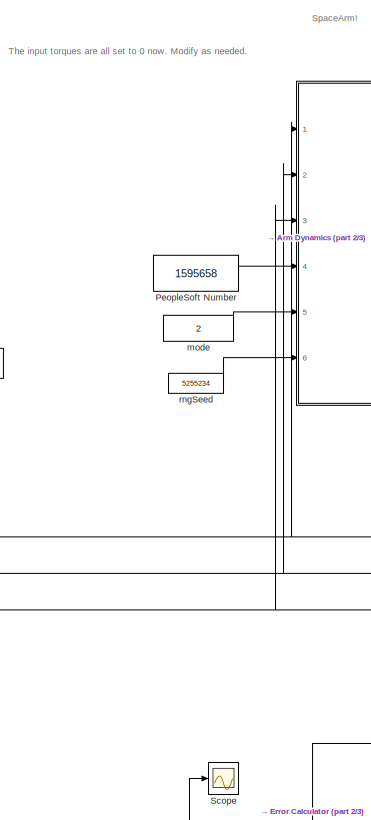
[diagram: root canvas - part 1/3, center side, full height]
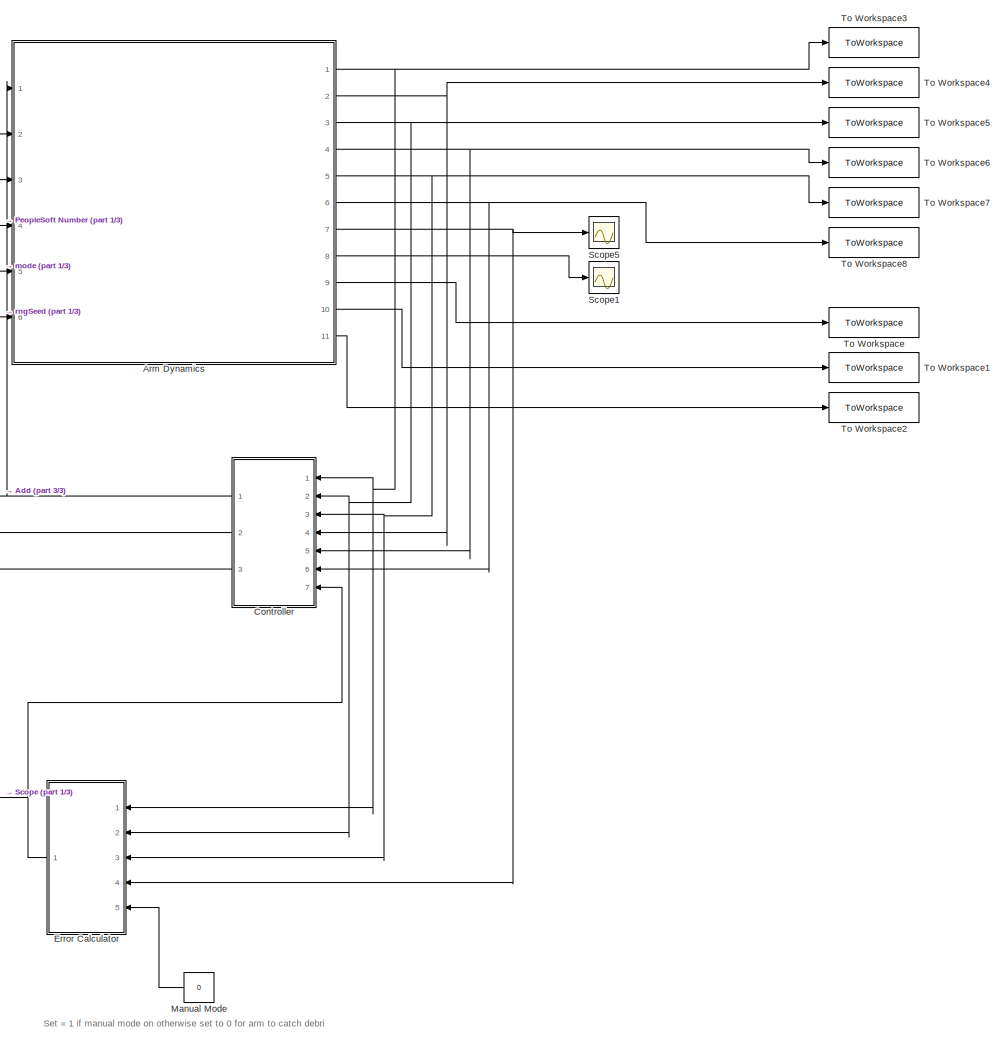
[diagram: root canvas - part 2/3, right side, full height]
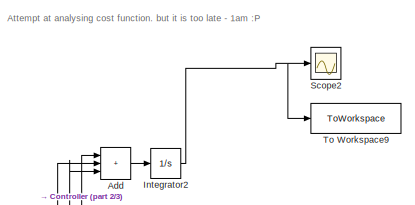
[diagram: root canvas - part 3/3, middle left region]
MODEL slx_ba3f19c8d5ce
KIND model
CONFIG AbsTol = auto
CONFIG EnableMultiTasking = off
CONFIG FixedStep = 0.01
CONFIG MaxStep = 0.01
CONFIG MinStep = auto
CONFIG RelTol = 1e-3
CONFIG SampleTimeConstraint = Unconstrained
CONFIG SolverName = ode4
CONFIG StartTime = 0.0
CONFIG StopTime = 5
BLOCK [Sum] Add
  IconShape = rectangular
  Inputs = +++
  Ports = [3, 1]
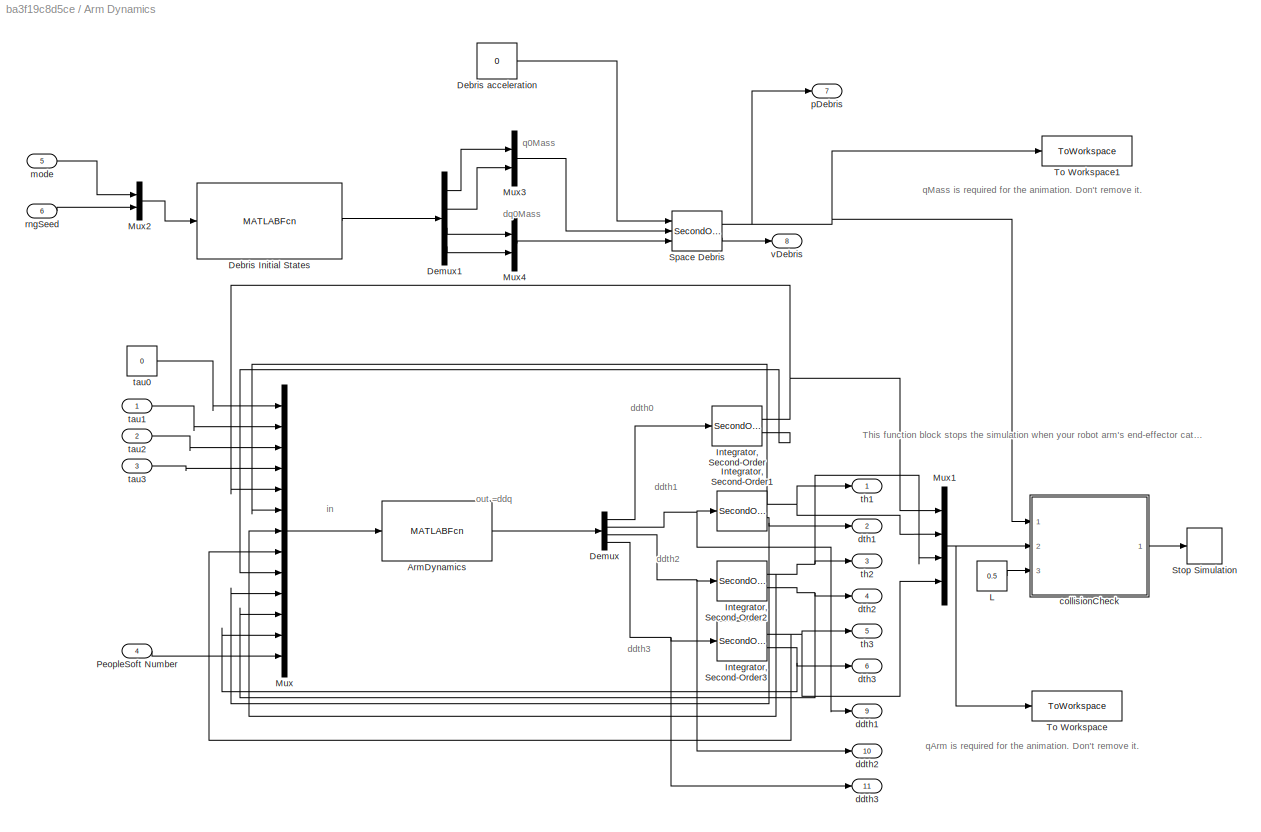
BLOCK [SubSystem] Arm Dynamics
  Ports = [6, 11]
  RequestExecContextInheritance = off
BLOCK [MATLABFcn] Arm Dynamics/ArmDynamics
  MATLABFcn = ArmDynamics
  OutputDimensions = 4
  Ports = [1, 1]
BLOCK [MATLABFcn] Arm Dynamics/Debris Initial States
  MATLABFcn = initdebrisstates
  OutputDimensions = 4
  Ports = [1, 1]
BLOCK [Constant] Arm Dynamics/Debris acceleration
  Value = 0
BLOCK [Demux] Arm Dynamics/Demux
  Ports = [1, 4]
BLOCK [Demux] Arm Dynamics/Demux1
  Ports = [1, 4]
BLOCK [SecondOrderIntegrator] Arm Dynamics/Integrator, Second-Order
  Ports = [1, 2]
BLOCK [SecondOrderIntegrator] Arm Dynamics/Integrator, Second-Order1
  ICX = -1*pi/2
  Ports = [1, 2]
BLOCK [SecondOrderIntegrator] Arm Dynamics/Integrator, Second-Order2
  Ports = [1, 2]
BLOCK [SecondOrderIntegrator] Arm Dynamics/Integrator, Second-Order3
  Ports = [1, 2]
BLOCK [Constant] Arm Dynamics/L
  Value = 0.5
BLOCK [Mux] Arm Dynamics/Mux
  DisplayOption = bar
  Inputs = 13
  Ports = [13, 1]
BLOCK [Mux] Arm Dynamics/Mux1
  DisplayOption = bar
  Ports = [4, 1]
BLOCK [Mux] Arm Dynamics/Mux2
  DisplayOption = bar
  Inputs = 2
  Ports = [2, 1]
BLOCK [Mux] Arm Dynamics/Mux3
  DisplayOption = bar
  Inputs = 2
  Ports = [2, 1]
BLOCK [Mux] Arm Dynamics/Mux4
  DisplayOption = bar
  Inputs = 2
  Ports = [2, 1]
BLOCK [Inport] Arm Dynamics/PeopleSoft Number
  Port = 4
BLOCK [SecondOrderIntegrator] Arm Dynamics/Space Debris
  ICDXDT = dq0Mass
  ICSourceDXDT = external
  ICSourceX = external
  ICX = q0Mass
  Ports = [3, 2]
BLOCK [Stop] Arm Dynamics/Stop Simulation
BLOCK [ToWorkspace] Arm Dynamics/To Workspace
  FixptAsFi = on
  MaxDataPoints = inf
  Ports = [1]
  SampleTime = 0.01
  SaveFormat = Structure With Time
  VariableName = qArm
BLOCK [ToWorkspace] Arm Dynamics/To Workspace1
  FixptAsFi = on
  MaxDataPoints = inf
  NameLocation = top
  Ports = [1]
  SampleTime = 0.01
  SaveFormat = Structure With Time
  VariableName = qMass
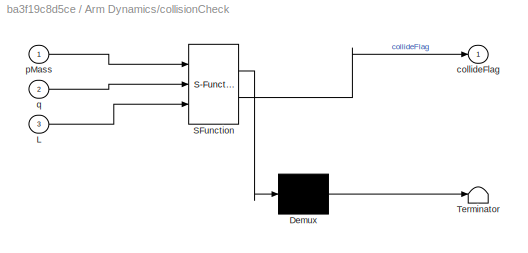
BLOCK [SubSystem] Arm Dynamics/collisionCheck
  ErrorFcn = Stateflow.Translate.translate
  PermitHierarchicalResolution = ExplicitOnly
  Ports = [3, 1]
  RequestExecContextInheritance = off
  SFBlockType = MATLAB Function
  TreatAsAtomicUnit = on
BLOCK [Demux] Arm Dynamics/collisionCheck/ Demux 
  Outputs = 1
  Ports = [1, 1]
BLOCK [S-Function] Arm Dynamics/collisionCheck/ SFunction 
  EnableBusSupport = on
  FunctionName = sf_sfun
  PortCounts = [3 2]
  Ports = [3, 2]
  SFcnIsStateOwnerBlock = off
  SFunctionDeploymentMode = off
  Tag = Stateflow S-Function 4
BLOCK [Terminator] Arm Dynamics/collisionCheck/ Terminator 
BLOCK [Inport] Arm Dynamics/collisionCheck/L
  Port = 3
BLOCK [Outport] Arm Dynamics/collisionCheck/collideFlag
BLOCK [Inport] Arm Dynamics/collisionCheck/pMass
BLOCK [Inport] Arm Dynamics/collisionCheck/q
  Port = 2
BLOCK [Outport] Arm Dynamics/ddth1
  Port = 9
BLOCK [Outport] Arm Dynamics/ddth2
  Port = 10
BLOCK [Outport] Arm Dynamics/ddth3
  Port = 11
BLOCK [Outport] Arm Dynamics/dth1
  Port = 2
BLOCK [Outport] Arm Dynamics/dth2
  Port = 4
BLOCK [Outport] Arm Dynamics/dth3
  Port = 6
BLOCK [Inport] Arm Dynamics/mode
  Port = 5
BLOCK [Outport] Arm Dynamics/pDebris
  Port = 7
BLOCK [Inport] Arm Dynamics/rngSeed
  Port = 6
BLOCK [Constant] Arm Dynamics/tau0
  Value = 0
BLOCK [Inport] Arm Dynamics/tau1
BLOCK [Inport] Arm Dynamics/tau2
  Port = 2
BLOCK [Inport] Arm Dynamics/tau3
  Port = 3
BLOCK [Outport] Arm Dynamics/th1
BLOCK [Outport] Arm Dynamics/th2
  Port = 3
BLOCK [Outport] Arm Dynamics/th3
  Port = 5
BLOCK [Outport] Arm Dynamics/vDebris
  Port = 8
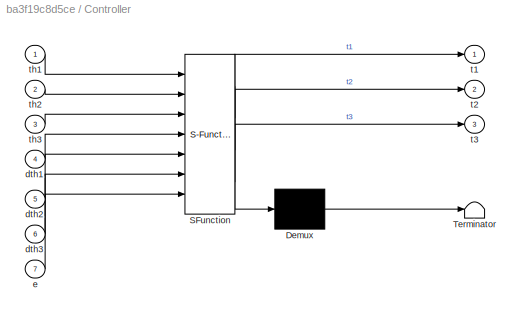
BLOCK [SubSystem] Controller
  ErrorFcn = Stateflow.Translate.translate
  NameLocation = top
  PermitHierarchicalResolution = ExplicitOnly
  Ports = [7, 3]
  RequestExecContextInheritance = off
  SFBlockType = MATLAB Function
  TreatAsAtomicUnit = on
BLOCK [Demux] Controller/ Demux 
  Outputs = 1
  Ports = [1, 1]
BLOCK [S-Function] Controller/ SFunction 
  EnableBusSupport = on
  FunctionName = sf_sfun
  PortCounts = [7 4]
  Ports = [7, 4]
  SFcnIsStateOwnerBlock = off
  SFunctionDeploymentMode = off
  Tag = Stateflow S-Function 2
BLOCK [Terminator] Controller/ Terminator 
BLOCK [Inport] Controller/dth1
  Port = 4
BLOCK [Inport] Controller/dth2
  Port = 5
BLOCK [Inport] Controller/dth3
  Port = 6
BLOCK [Inport] Controller/e
  Port = 7
BLOCK [Outport] Controller/t1
BLOCK [Outport] Controller/t2
  Port = 2
BLOCK [Outport] Controller/t3
  Port = 3
BLOCK [Inport] Controller/th1
BLOCK [Inport] Controller/th2
  Port = 2
BLOCK [Inport] Controller/th3
  Port = 3
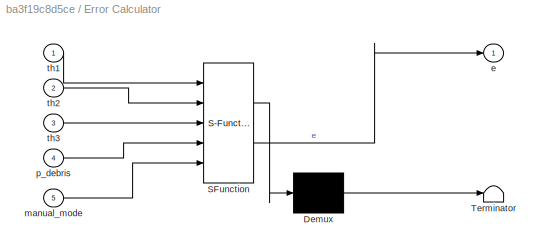
BLOCK [SubSystem] Error Calculator
  ErrorFcn = Stateflow.Translate.translate
  NameLocation = top
  PermitHierarchicalResolution = ExplicitOnly
  Ports = [5, 1]
  RequestExecContextInheritance = off
  SFBlockType = MATLAB Function
  TreatAsAtomicUnit = on
BLOCK [Demux] Error Calculator/ Demux 
  Outputs = 1
  Ports = [1, 1]
BLOCK [S-Function] Error Calculator/ SFunction 
  EnableBusSupport = on
  FunctionName = sf_sfun
  PortCounts = [5 2]
  Ports = [5, 2]
  SFcnIsStateOwnerBlock = off
  SFunctionDeploymentMode = off
  Tag = Stateflow S-Function 5
BLOCK [Terminator] Error Calculator/ Terminator 
BLOCK [Outport] Error Calculator/e
BLOCK [Inport] Error Calculator/manual_mode
  Port = 5
BLOCK [Inport] Error Calculator/p_debris
  Port = 4
BLOCK [Inport] Error Calculator/th1
BLOCK [Inport] Error Calculator/th2
  Port = 2
BLOCK [Inport] Error Calculator/th3
  Port = 3
BLOCK [Integrator] Integrator2
  Ports = [1, 1]
BLOCK [Constant] Manual Mode
  NameLocation = top
  Value = 0
BLOCK [Constant] PeopleSoft Number
  Value = 1595658
BLOCK [Scope] Scope
  Floating = off
  NumInputPorts = 1
  Ports = [1]
  ScopeSpecificationString = Simulink.scopes.TimeScopeBlockCfg('CurrentConfiguration', extmgr.ConfigurationSet(extmgr.Configuration('Core','General UI',true),extmgr.Configuration('Core','Source UI',true),extmgr.Configuration('Sources','WiredSimulink',true,'DataLoggingVariableName','ScopeData1'),extmgr.Configuration('Visuals','Time Domain',true,'SerializedDisplays',{struct('MinYLimReal','-0.45914','MaxYLimReal','2.30699','YLab...<+1561ch>
BLOCK [Scope] Scope1
  Floating = off
  NumInputPorts = 1
  Ports = [1]
  ScopeSpecificationString = Simulink.scopes.TimeScopeBlockCfg('CurrentConfiguration', extmgr.ConfigurationSet(extmgr.Configuration('Core','General UI',true),extmgr.Configuration('Core','Source UI',true),extmgr.Configuration('Sources','WiredSimulink',true,'DataLoggingVariableName','ScopeData1'),extmgr.Configuration('Visuals','Time Domain',true,'SerializedDisplays',{struct('MinYLimReal','-2.98255','MaxYLimReal','0.13611','YLab...<+1394ch>
BLOCK [Scope] Scope2
  Floating = off
  NumInputPorts = 1
  Ports = [1]
  ScopeSpecificationString = Simulink.scopes.TimeScopeBlockCfg('CurrentConfiguration', extmgr.ConfigurationSet(extmgr.Configuration('Core','General UI',true),extmgr.Configuration('Core','Source UI',true),extmgr.Configuration('Sources','WiredSimulink',true,'DataLoggingVariableName','ScopeData1'),extmgr.Configuration('Visuals','Time Domain',true,'SerializedDisplays',{struct('MinYLimReal','-4.08008','MaxYLimReal','36.72068','YLa...<+1374ch>
BLOCK [Scope] Scope5
  Floating = off
  NumInputPorts = 1
  Ports = [1]
  ScopeSpecificationString = Simulink.scopes.TimeScopeBlockCfg('CurrentConfiguration', extmgr.ConfigurationSet(extmgr.Configuration('Core','General UI',true),extmgr.Configuration('Core','Source UI',true),extmgr.Configuration('Sources','WiredSimulink',true,'DataLoggingVariableName','ScopeData1'),extmgr.Configuration('Visuals','Time Domain',true,'SerializedDisplays',{struct('MinYLimReal','-10.03338','MaxYLimReal','6.65839','YLa...<+1430ch>
BLOCK [ToWorkspace] To Workspace
  FixptAsFi = on
  MaxDataPoints = inf
  Ports = [1]
  SampleTime = -1
  VariableName = ddth1
BLOCK [ToWorkspace] To Workspace1
  FixptAsFi = on
  MaxDataPoints = inf
  Ports = [1]
  SampleTime = -1
  VariableName = ddth2
BLOCK [ToWorkspace] To Workspace2
  FixptAsFi = on
  MaxDataPoints = inf
  Ports = [1]
  SampleTime = -1
  VariableName = ddth3
BLOCK [ToWorkspace] To Workspace3
  FixptAsFi = on
  MaxDataPoints = inf
  Ports = [1]
  SampleTime = -1
  VariableName = th1
BLOCK [ToWorkspace] To Workspace4
  FixptAsFi = on
  MaxDataPoints = inf
  Ports = [1]
  SampleTime = -1
  VariableName = dth1
BLOCK [ToWorkspace] To Workspace5
  FixptAsFi = on
  MaxDataPoints = inf
  Ports = [1]
  SampleTime = -1
  VariableName = th2
BLOCK [ToWorkspace] To Workspace6
  FixptAsFi = on
  MaxDataPoints = inf
  Ports = [1]
  SampleTime = -1
  VariableName = dth2
BLOCK [ToWorkspace] To Workspace7
  FixptAsFi = on
  MaxDataPoints = inf
  Ports = [1]
  SampleTime = -1
  VariableName = th3
BLOCK [ToWorkspace] To Workspace8
  FixptAsFi = on
  MaxDataPoints = inf
  Ports = [1]
  SampleTime = -1
  VariableName = dth3
BLOCK [ToWorkspace] To Workspace9
  FixptAsFi = on
  MaxDataPoints = inf
  Ports = [1]
  SampleTime = -1
  VariableName = cost
BLOCK [Constant] mode
  Value = 2
BLOCK [Constant] rngSeed
  Value = 5255234
ANNOTATION (root): SpaceArm !
ANNOTATION (root): Attempt at analysing cost function. but it is too late - 1am :P
ANNOTATION (root): Set = 1 if manual mode on otherwise set to 0 for arm to catch debri
ANNOTATION (root): The input torques are all set to 0 now. Modify as needed.
ANNOTATION Arm Dynamics: This function block stops the simulation when your robot arm's end-effector catches the debris.
ANNOTATION Arm Dynamics: ddth0
ANNOTATION Arm Dynamics: ddth1
ANNOTATION Arm Dynamics: ddth2
ANNOTATION Arm Dynamics: ddth3
ANNOTATION Arm Dynamics: dq0Mass
ANNOTATION Arm Dynamics: in
ANNOTATION Arm Dynamics: out =ddq
ANNOTATION Arm Dynamics: q0Mass
ANNOTATION Arm Dynamics: qArm is required for the animation. Don't remove it.
ANNOTATION Arm Dynamics: qMass is required for the animation. Don't remove it.
LINE Add:1 -> Integrator2:1
LINE Arm Dynamics/ArmDynamics:1 -> Arm Dynamics/Demux:1
LINE Arm Dynamics/Debris Initial States:1 -> Arm Dynamics/Demux1:1
LINE Arm Dynamics/Debris acceleration:1 -> Arm Dynamics/Space Debris:1
LINE Arm Dynamics/Demux1:1 -> Arm Dynamics/Mux3:1
LINE Arm Dynamics/Demux1:2 -> Arm Dynamics/Mux3:2
LINE Arm Dynamics/Demux1:3 -> Arm Dynamics/Mux4:1
LINE Arm Dynamics/Demux1:4 -> Arm Dynamics/Mux4:2
LINE Arm Dynamics/Demux:1 -> Arm Dynamics/Integrator, Second-Order:1
NET Arm Dynamics/Demux:2 -> Arm Dynamics/Integrator, Second-Order1:1, Arm Dynamics/ddth1:1
NET Arm Dynamics/Demux:3 -> Arm Dynamics/Integrator, Second-Order2:1, Arm Dynamics/ddth2:1
NET Arm Dynamics/Demux:4 -> Arm Dynamics/Integrator, Second-Order3:1, Arm Dynamics/ddth3:1
NET Arm Dynamics/Integrator, Second-Order1:1 -> Arm Dynamics/Mux1:2, Arm Dynamics/Mux:6, Arm Dynamics/th1:1
NET Arm Dynamics/Integrator, Second-Order1:2 -> Arm Dynamics/Mux:10, Arm Dynamics/dth1:1
NET Arm Dynamics/Integrator, Second-Order2:1 -> Arm Dynamics/Mux1:3, Arm Dynamics/Mux:7, Arm Dynamics/th2:1
NET Arm Dynamics/Integrator, Second-Order2:2 -> Arm Dynamics/Mux:11, Arm Dynamics/dth2:1
NET Arm Dynamics/Integrator, Second-Order3:1 -> Arm Dynamics/Mux1:4, Arm Dynamics/Mux:8, Arm Dynamics/th3:1
NET Arm Dynamics/Integrator, Second-Order3:2 -> Arm Dynamics/Mux:12, Arm Dynamics/dth3:1
NET Arm Dynamics/Integrator, Second-Order:1 -> Arm Dynamics/Mux1:1, Arm Dynamics/Mux:5
LINE Arm Dynamics/Integrator, Second-Order:2 -> Arm Dynamics/Mux:9
LINE Arm Dynamics/L:1 -> Arm Dynamics/collisionCheck:3
NET Arm Dynamics/Mux1:1 -> Arm Dynamics/To Workspace:1, Arm Dynamics/collisionCheck:2
LINE Arm Dynamics/Mux2:1 -> Arm Dynamics/Debris Initial States:1
LINE Arm Dynamics/Mux3:1 -> Arm Dynamics/Space Debris:2
LINE Arm Dynamics/Mux4:1 -> Arm Dynamics/Space Debris:3
LINE Arm Dynamics/Mux:1 -> Arm Dynamics/ArmDynamics:1
LINE Arm Dynamics/PeopleSoft Number:1 -> Arm Dynamics/Mux:13
NET Arm Dynamics/Space Debris:1 -> Arm Dynamics/To Workspace1:1, Arm Dynamics/collisionCheck:1, Arm Dynamics/pDebris:1
LINE Arm Dynamics/Space Debris:2 -> Arm Dynamics/vDebris:1
LINE Arm Dynamics/collisionCheck:1 -> Arm Dynamics/Stop Simulation:1
LINE Arm Dynamics/mode:1 -> Arm Dynamics/Mux2:1
LINE Arm Dynamics/rngSeed:1 -> Arm Dynamics/Mux2:2
LINE Arm Dynamics/tau0:1 -> Arm Dynamics/Mux:1
LINE Arm Dynamics/tau1:1 -> Arm Dynamics/Mux:2
LINE Arm Dynamics/tau2:1 -> Arm Dynamics/Mux:3
LINE Arm Dynamics/tau3:1 -> Arm Dynamics/Mux:4
NET Arm Dynamics:1 -> Controller:1, Error Calculator:1, To Workspace3:1
LINE Arm Dynamics:10 -> To Workspace1:1
LINE Arm Dynamics:11 -> To Workspace2:1
NET Arm Dynamics:2 -> Controller:4, To Workspace4:1
NET Arm Dynamics:3 -> Controller:2, Error Calculator:2, To Workspace5:1
NET Arm Dynamics:4 -> Controller:5, To Workspace6:1
NET Arm Dynamics:5 -> Controller:3, Error Calculator:3, To Workspace7:1
NET Arm Dynamics:6 -> Controller:6, To Workspace8:1
NET Arm Dynamics:7 -> Error Calculator:4, Scope5:1
LINE Arm Dynamics:8 -> Scope1:1
LINE Arm Dynamics:9 -> To Workspace:1
NET Controller:1 -> Add:1, Arm Dynamics:1
NET Controller:2 -> Add:2, Arm Dynamics:2
NET Controller:3 -> Add:3, Arm Dynamics:3
NET Error Calculator:1 -> Controller:7, Scope:1
NET Integrator2:1 -> Scope2:1, To Workspace9:1
LINE Manual Mode:1 -> Error Calculator:5
LINE PeopleSoft Number:1 -> Arm Dynamics:4
LINE mode:1 -> Arm Dynamics:5
LINE rngSeed:1 -> Arm Dynamics:6
note: NET lines group one-source signal fan-out (src -> all destinations, sorted); 1:1 wires keep LINE
CHART Controller states=1 transitions=1
  STATE_LABEL 'eML_blk_kernel()'
  STATE_LABEL 'SCRIPT:\nfunction [t1,t2,t3]= fcn(th1, th2, th3, dth1, dth2, dth3, e)\n\nm = 1;\nI = 0.1;  \nL = 0.5;\nKp = 65     %gains\nKd = 13\ne1 = e(1)   \ne2 = e(2)\ne3 = e(3)\nde1 = -dth1  %this is the parameters i used for the derivative of the error instead of a block or extra formula\nde2 = -dth2\nde3 = -dth3\n\n%to find these tau equations I found them in the Sys_dynamics script\n%symbolically. Here I sub in the valu...<+1319ch>'
CHART Arm Dynamics/collisionCheck states=1 transitions=1
  STATE_LABEL 'eML_blk_kernel()'
  STATE_LABEL 'SCRIPT:\nfunction collideFlag = fcn(pMass, q, L)\nthresh = 0.1;   %threshold for vacuum to suck up debris\n\nth0 = q(1);\nth1 = q(2);\nth2 = q(3);\nth3 = q(4);\n\npEnd = [L*(cos(th0 + th1 + th2) + cos(th0 + th1 + th2 + th3) + cos(th0 + th1));...\n        L*(sin(th0 + th1 + th2) + sin(th0 + th1 + th2 + th3) + sin(th0 + th1))];\n\n\n% Calculate Euclidean Distance\ndist = pMass-pEnd;\n\nif norm(dist) <= thresh\n    \n...<+50ch>'
CHART Error Calculator states=1 transitions=1
  STATE_LABEL 'eML_blk_kernel()'
  STATE_LABEL 'SCRIPT:\nfunction e = fcn(th1, th2, th3, p_debris, manual_mode)\nL = 0.5\n\ndebris_x = p_debris(1)\ndebris_y = p_debris(2)\n\n% setpoint in this case is an angle\nsetpoint = atan(debris_y/debris_x)\n% If debris approaches from left isde the angle should be adjusted\nif debris_x < 0\n    setpoint = -pi + atan(debris_y/debris_x)\nend\nif manual_mode == 1        %Mode where link should go upright\n    setpoint = p...<+39ch>'
CHART  states=0 transitions=0
CHART  states=0 transitions=0
CHART  states=0 transitions=0
